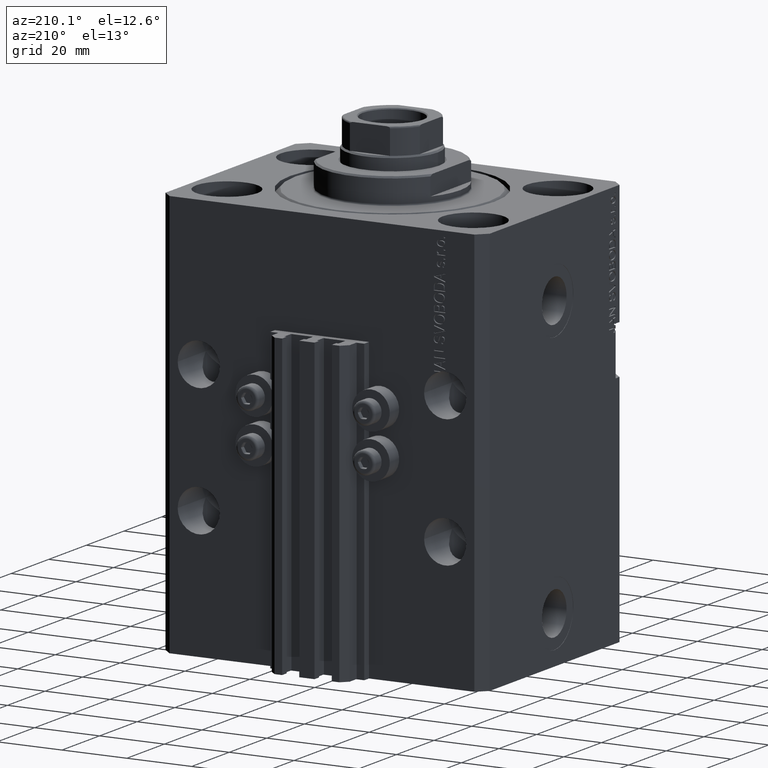
[diagram: clean part render]
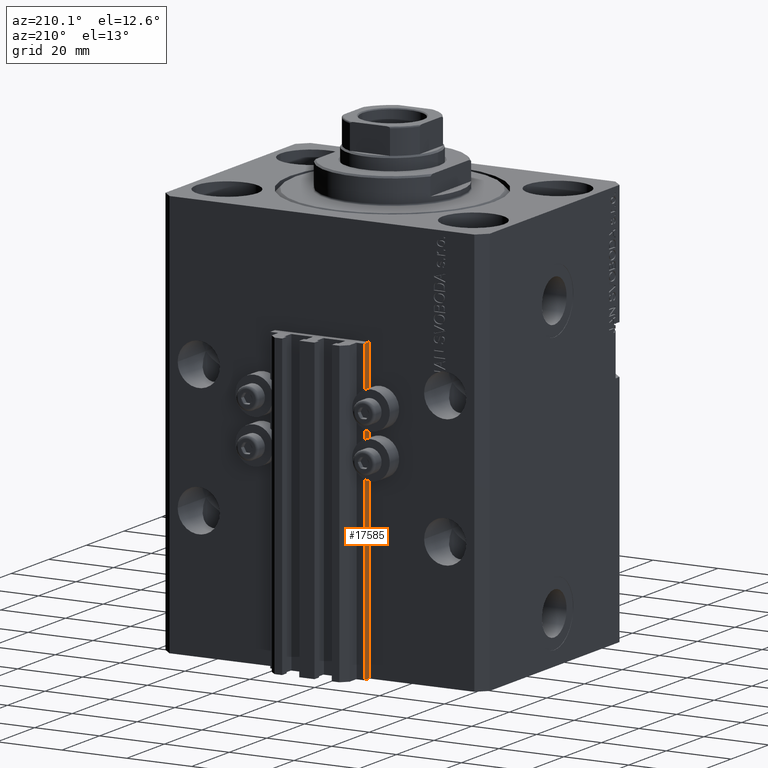
[diagram: same view with one face highlighted and labeled with its STEP entity id]
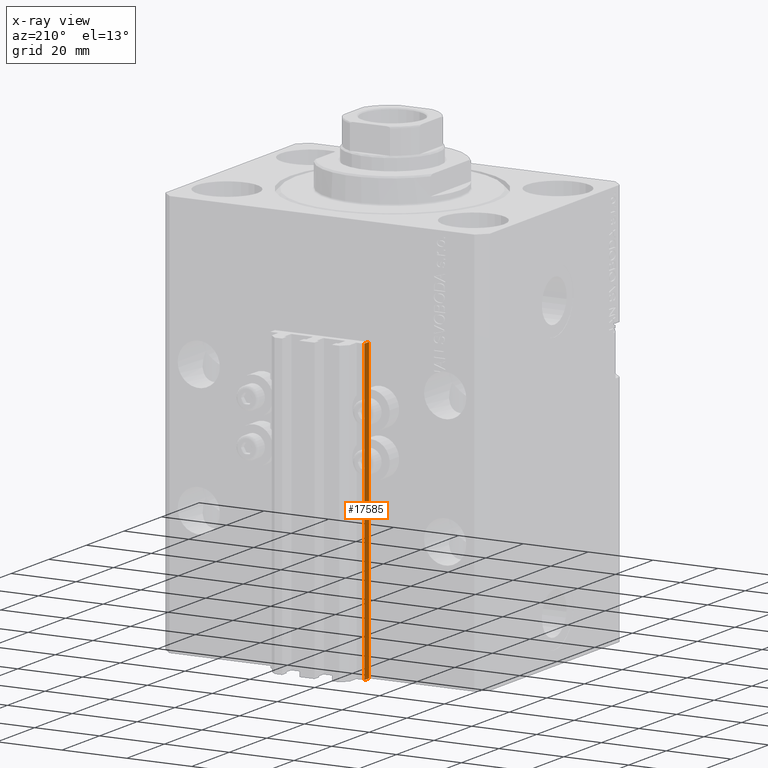
[diagram: x-ray of the same camera — body ghosted, the highlighted face saturated]
A machine part, auxiliary view. The second image highlights one B-rep face of the part: STEP entity #17585.
The next image is the same camera in x-ray: the body ghosted, the highlighted face saturated — about 0% of this face is hidden behind the body in this view.
In plain terms, the highlighted planar face has unit normal (-1, 0, 0).
Its self-contained STEP definition (entity closure, byte-faithful):
#4598 = LINE ( 'NONE', #37751, #17460 ) ;
#7069 = CARTESIAN_POINT ( 'NONE',  ( -14.50000000000000000, 39.99999999999999289, -125.0000000000000000 ) ) ;
#10607 = DIRECTION ( 'NONE',  ( -1.000000000000000000, 0.000000000000000000, 0.000000000000000000 ) ) ;
#10870 = EDGE_CURVE ( 'NONE', #20544, #21816, #40076, .T. ) ;
#14888 = ORIENTED_EDGE ( 'NONE', *, *, #10870, .T. ) ;
#17460 = VECTOR ( 'NONE', #41888, 1000.000000000000000 ) ;
#17585 = ADVANCED_FACE ( 'NONE', ( #44012 ), #44479, .T. ) ;
#19979 = ORIENTED_EDGE ( 'NONE', *, *, #39217, .F. ) ;
#19987 = DIRECTION ( 'NONE',  ( 0.000000000000000000, -1.000000000000000000, 0.000000000000000000 ) ) ;
#20544 = VERTEX_POINT ( 'NONE', #24556 ) ;
#20998 = VERTEX_POINT ( 'NONE', #33185 ) ;
#21201 = LINE ( 'NONE', #7069, #43158 ) ;
#21533 = CARTESIAN_POINT ( 'NONE',  ( -14.50000000000000000, 37.50000000000000000, -125.0000000000000000 ) ) ;
#21816 = VERTEX_POINT ( 'NONE', #22031 ) ;
#22031 = CARTESIAN_POINT ( 'NONE',  ( -14.50000000000000000, 37.50000000000000000, -33.00000000000000000 ) ) ;
#23650 = CARTESIAN_POINT ( 'NONE',  ( -14.50000000000000000, 39.99999999999999289, -33.00000000000000000 ) ) ;
#24556 = CARTESIAN_POINT ( 'NONE',  ( -14.50000000000000000, 37.50000000000000000, -125.0000000000000000 ) ) ;
#25485 = DIRECTION ( 'NONE',  ( 0.000000000000000000, 0.000000000000000000, 1.000000000000000000 ) ) ;
#26200 = ORIENTED_EDGE ( 'NONE', *, *, #39535, .F. ) ;
#26306 = AXIS2_PLACEMENT_3D ( 'NONE', #37189, #10607, #25485 ) ;
#28955 = CARTESIAN_POINT ( 'NONE',  ( -14.50000000000000000, 39.99999999999999289, -125.0000000000000000 ) ) ;
#30714 = VECTOR ( 'NONE', #36419, 1000.000000000000000 ) ;
#32546 = EDGE_LOOP ( 'NONE', ( #19979, #26200, #47575, #14888 ) ) ;
#32658 = DIRECTION ( 'NONE',  ( 0.000000000000000000, -1.000000000000000000, 0.000000000000000000 ) ) ;
#33185 = CARTESIAN_POINT ( 'NONE',  ( -14.50000000000000000, 39.99999999999999289, -33.00000000000000000 ) ) ;
#35778 = EDGE_CURVE ( 'NONE', #45692, #20544, #21201, .T. ) ;
#36419 = DIRECTION ( 'NONE',  ( 0.000000000000000000, 0.000000000000000000, 1.000000000000000000 ) ) ;
#37050 = VECTOR ( 'NONE', #19987, 1000.000000000000000 ) ;
#37189 = CARTESIAN_POINT ( 'NONE',  ( -14.50000000000000000, 39.99999999999999289, -125.0000000000000000 ) ) ;
#37751 = CARTESIAN_POINT ( 'NONE',  ( -14.50000000000000000, 39.99999999999999289, -125.0000000000000000 ) ) ;
#39217 = EDGE_CURVE ( 'NONE', #20998, #21816, #45599, .T. ) ;
#39535 = EDGE_CURVE ( 'NONE', #45692, #20998, #4598, .T. ) ;
#40076 = LINE ( 'NONE', #21533, #30714 ) ;
#41888 = DIRECTION ( 'NONE',  ( 0.000000000000000000, 0.000000000000000000, 1.000000000000000000 ) ) ;
#43158 = VECTOR ( 'NONE', #32658, 1000.000000000000000 ) ;
#44012 = FACE_OUTER_BOUND ( 'NONE', #32546, .T. ) ;
#44479 = PLANE ( 'NONE',  #26306 ) ;
#45599 = LINE ( 'NONE', #23650, #37050 ) ;
#45692 = VERTEX_POINT ( 'NONE', #28955 ) ;
#47575 = ORIENTED_EDGE ( 'NONE', *, *, #35778, .T. ) ;